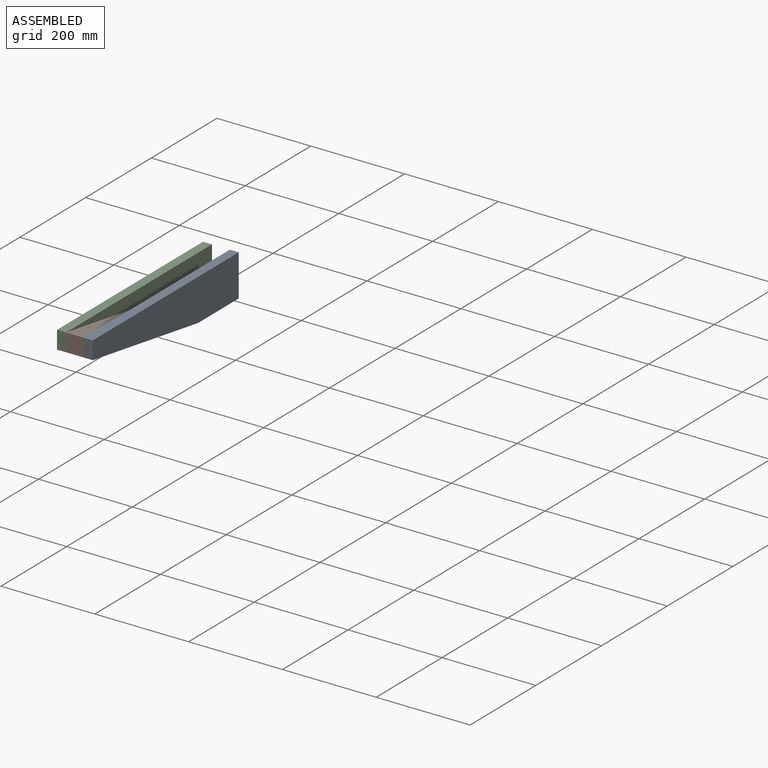
[diagram: assembled view]
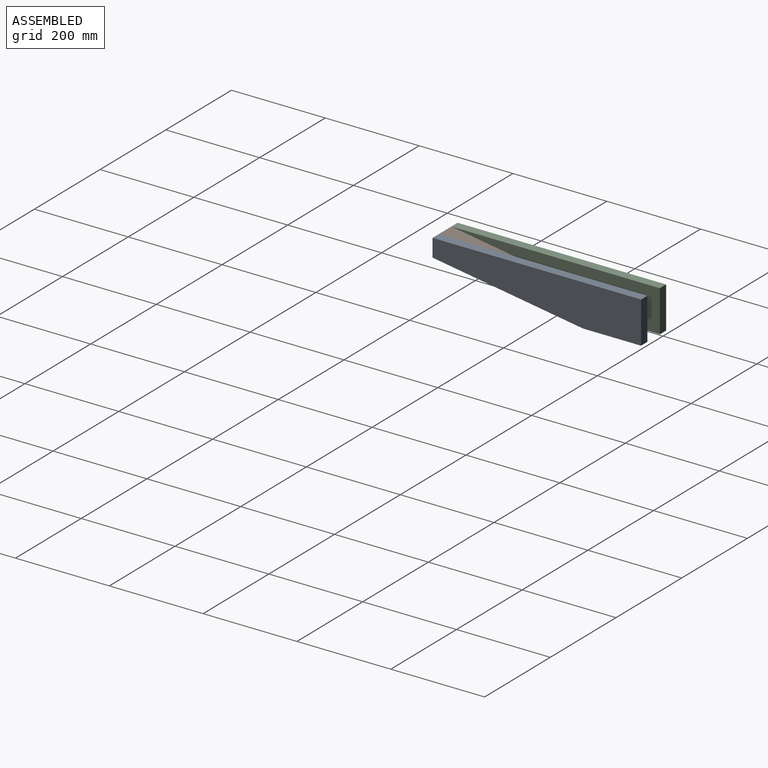
[diagram: assembled view, second angle]
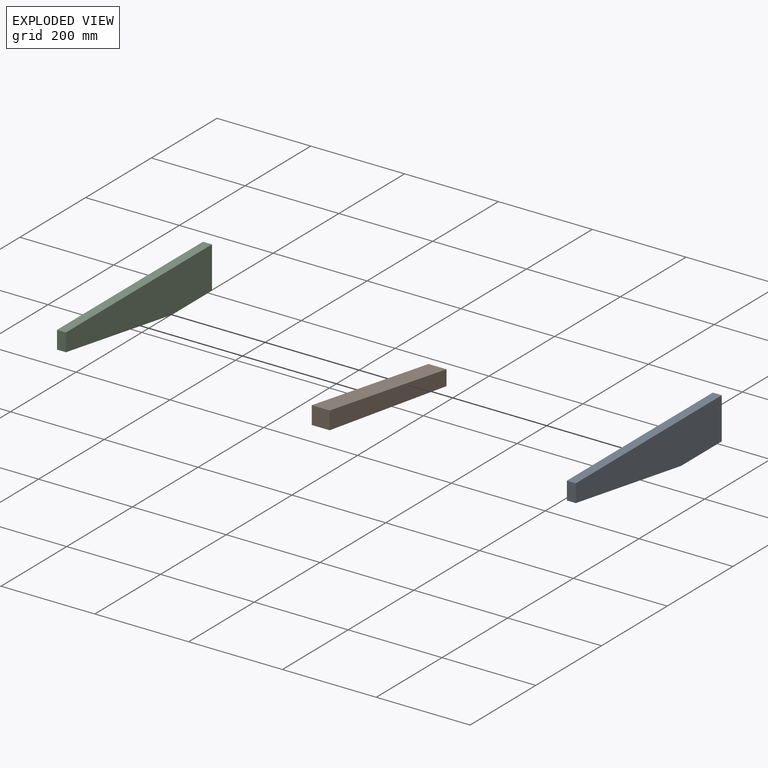
[diagram: exploded view]
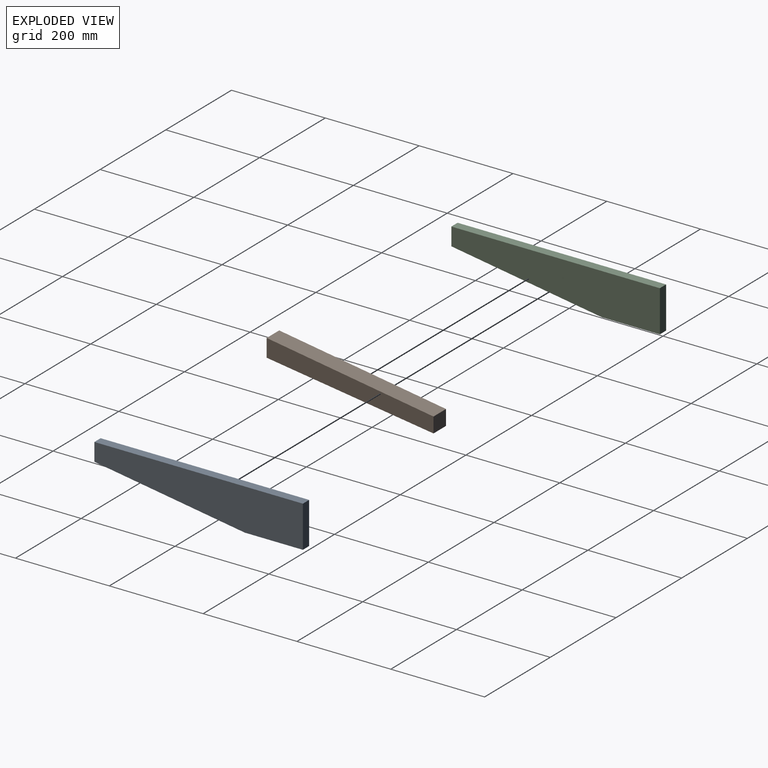
[diagram: exploded view, second angle]
ASSEMBLY  parts=3 mates=2
PART A: 7 faces, bbox 19.1x444.5x88.9 mm
  f0: plane 88.9x19.05mm, normal (0,1,0), area 1693.5mm2, adj f1,f4,f5,f6
  f1: plane 444.5x19.05mm, normal (0,0,1), area 8467.7mm2, adj f0,f2,f5,f6
  f2: plane 38.1x19.05mm, normal (0,-1,0), area 725.8mm2, adj f1,f3,f5,f6
  f3: plane 320.68x50.8mm, normal (0,-0.16,-0.99), area 6185mm2, adj f2,f4,f5,f6
  f4: plane 123.83x19.05mm, normal (0,0,-1), area 2358.9mm2, adj f0,f3,f5,f6
  f5: plane 444.5x88.9mm, normal (1,0,0), area 31370.9mm2, adj f0,f1,f2,f3,f4
  f6: plane 444.5x88.9mm, normal (-1,0,0), area 31370.9mm2, adj f0,f1,f2,f3,f4
PART B: 6 faces, bbox 38.1x355.6x88.9 mm
  f0: plane 355.6x50.8mm, normal (0,-0.14,-0.99), area 13685.9mm2, adj f1,f3,f4,f5
  f1: plane 38.1x38.1mm, normal (0,-1,0), area 1451.6mm2, adj f0,f2,f4,f5
  f2: plane 355.6x56.33mm, normal (0,0.16,0.99), area 13717.3mm2, adj f1,f3,f4,f5
  f3: plane 38.1x32.57mm, normal (0,1,0), area 1240.8mm2, adj f0,f2,f4,f5
  f4: plane 355.6x88.9mm, normal (-1,0,0), area 12564.7mm2, adj f0,f1,f2,f3
  f5: plane 355.6x88.9mm, normal (1,0,0), area 12564.7mm2, adj f0,f1,f2,f3
PART C: same geometry as A
PLACE A t=(9.52,0,-1030.63)mm
PLACE B t=(9.52,0,-1030.63)mm
PLACE C t=(-47.63,0,-1030.63)mm
MATE fastened B.f4 <-> C.f5  axis (-1,0,0) through (9.52,-444.5,88.9)mm
MATE fastened B.f5 <-> A.f6  axis (1,0,0) through (47.62,-444.5,88.9)mm
